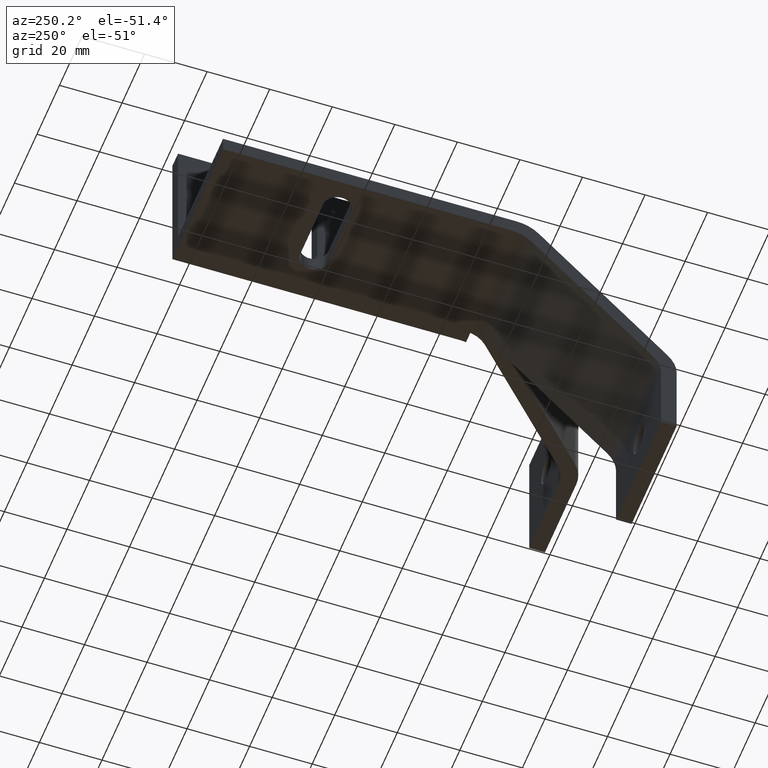
[diagram: clean part render]
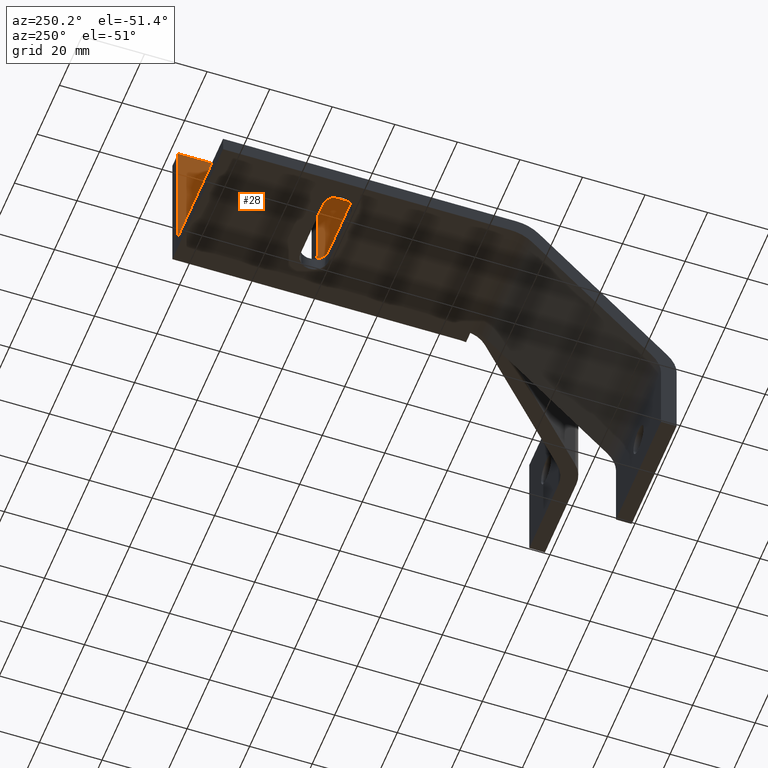
[diagram: same view with one face highlighted and labeled with its STEP entity id]
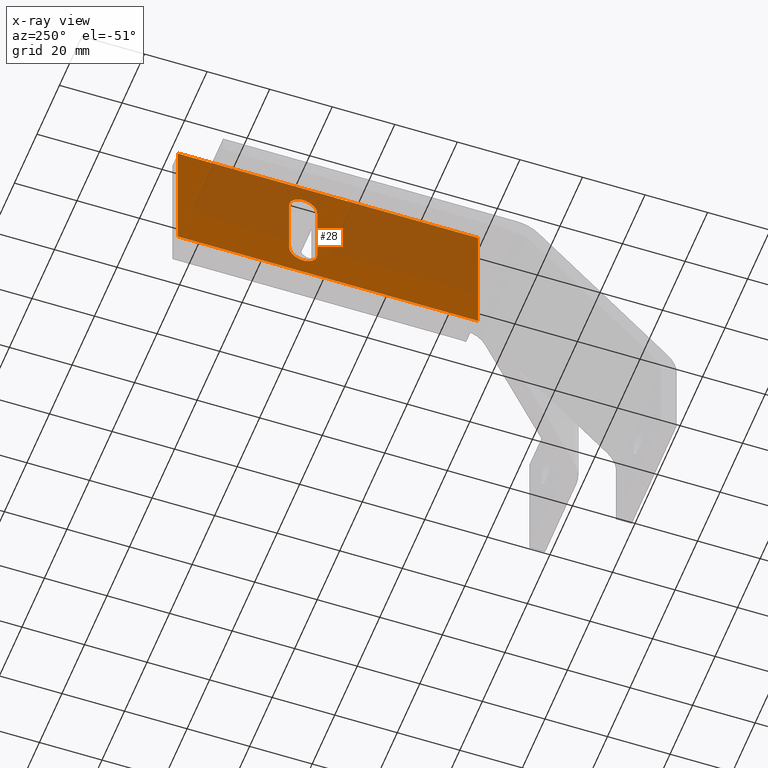
[diagram: x-ray of the same camera — body ghosted, the highlighted face saturated]
A machine part, auxiliary view. The second image highlights one B-rep face of the part: STEP entity #28.
The next image is the same camera in x-ray: the body ghosted, the highlighted face saturated — about 56% of this face is hidden behind the body in this view.
In plain terms, the highlighted planar face has unit normal (1, -0, 0).
Its self-contained STEP definition (entity closure, byte-faithful):
#28 = ADVANCED_FACE ( 'NONE', ( #658, #657 ), #1250, .F. ) ;
#60 = EDGE_CURVE ( 'NONE', #776, #788, #592, .T. ) ;
#80 = EDGE_CURVE ( 'NONE', #1098, #287, #545, .T. ) ;
#81 = EDGE_CURVE ( 'NONE', #782, #288, #542, .T. ) ;
#88 = EDGE_CURVE ( 'NONE', #778, #788, #530, .T. ) ;
#91 = EDGE_CURVE ( 'NONE', #778, #786, #523, .T. ) ;
#93 = EDGE_CURVE ( 'NONE', #288, #1098, #518, .T. ) ;
#95 = EDGE_CURVE ( 'NONE', #287, #782, #515, .T. ) ;
#108 = EDGE_CURVE ( 'NONE', #785, #776, #493, .T. ) ;
#159 = CARTESIAN_POINT ( 'NONE',  ( -76.99999999999998600, 100.5000000006853800, 30.00000000000000000 ) ) ;
#160 = CARTESIAN_POINT ( 'NONE',  ( -77.00000000000001400, 109.5000000210259700, 10.00000000000000000 ) ) ;
#166 = CARTESIAN_POINT ( 'NONE',  ( -77.00000000000000000, 51.14213562400002600, 0.0000000000000000000 ) ) ;
#168 = CARTESIAN_POINT ( 'NONE',  ( -76.99999999666667300, 145.0000000000000000, 40.00000000000000000 ) ) ;
#172 = CARTESIAN_POINT ( 'NONE',  ( -76.99999999999998600, 109.5000000210259700, 30.00000000046147600 ) ) ;
#175 = CARTESIAN_POINT ( 'NONE',  ( -77.00000000000000000, 49.07106781199998800, 0.0000000000000000000 ) ) ;
#176 = CARTESIAN_POINT ( 'NONE',  ( -77.00000000000000000, 49.07106781199999500, 40.00000000000000000 ) ) ;
#178 = CARTESIAN_POINT ( 'NONE',  ( -76.99999999666667300, 145.0000000000000000, -3.333333320013990500E-009 ) ) ;
#187 = CARTESIAN_POINT ( 'NONE',  ( -77.00000000000001400, 100.5000000006853800, 10.00000000000000000 ) ) ;
#273 = EDGE_CURVE ( 'NONE', #786, #785, #430, .T. ) ;
#287 = VERTEX_POINT ( 'NONE', #159 ) ;
#288 = VERTEX_POINT ( 'NONE', #160 ) ;
#429 = VECTOR ( 'NONE', #1083, 1000.000000000000000 ) ;
#430 = LINE ( 'NONE', #1082, #429 ) ;
#492 = VECTOR ( 'NONE', #1032, 1000.000000000000000 ) ;
#493 = LINE ( 'NONE', #1031, #492 ) ;
#515 = CIRCLE ( 'NONE', #734, 4.499999999999990200 ) ;
#518 = CIRCLE ( 'NONE', #735, 4.500000000000003600 ) ;
#522 = VECTOR ( 'NONE', #795, 1000.000000000000000 ) ;
#523 = LINE ( 'NONE', #794, #522 ) ;
#528 = VECTOR ( 'NONE', #1155, 1000.000000000000000 ) ;
#530 = LINE ( 'NONE', #1154, #528 ) ;
#532 = ORIENTED_EDGE ( 'NONE', *, *, #81, .F. ) ;
#541 = VECTOR ( 'NONE', #1139, 1000.000000000000000 ) ;
#542 = LINE ( 'NONE', #1138, #541 ) ;
#543 = VECTOR ( 'NONE', #1137, 1000.000000000000000 ) ;
#545 = LINE ( 'NONE', #1136, #543 ) ;
#546 = ORIENTED_EDGE ( 'NONE', *, *, #273, .F. ) ;
#591 = VECTOR ( 'NONE', #1162, 1000.000000000000000 ) ;
#592 = LINE ( 'NONE', #1161, #591 ) ;
#657 = FACE_OUTER_BOUND ( 'NONE', #831, .T. ) ;
#658 = FACE_BOUND ( 'NONE', #828, .T. ) ;
#693 = ORIENTED_EDGE ( 'NONE', *, *, #95, .F. ) ;
#694 = ORIENTED_EDGE ( 'NONE', *, *, #80, .F. ) ;
#696 = ORIENTED_EDGE ( 'NONE', *, *, #93, .F. ) ;
#716 = ORIENTED_EDGE ( 'NONE', *, *, #91, .F. ) ;
#717 = ORIENTED_EDGE ( 'NONE', *, *, #88, .T. ) ;
#734 = AXIS2_PLACEMENT_3D ( 'NONE', #803, #804, #805 ) ;
#735 = AXIS2_PLACEMENT_3D ( 'NONE', #798, #799, #800 ) ;
#771 = AXIS2_PLACEMENT_3D ( 'NONE', #1251, #1252, #1253 ) ;
#776 = VERTEX_POINT ( 'NONE', #166 ) ;
#778 = VERTEX_POINT ( 'NONE', #168 ) ;
#782 = VERTEX_POINT ( 'NONE', #172 ) ;
#785 = VERTEX_POINT ( 'NONE', #175 ) ;
#786 = VERTEX_POINT ( 'NONE', #176 ) ;
#788 = VERTEX_POINT ( 'NONE', #178 ) ;
#794 = CARTESIAN_POINT ( 'NONE',  ( -77.00000000000000000, 97.03553390599998400, 40.00000000000000000 ) ) ;
#795 = DIRECTION ( 'NONE',  ( -0.0000000000000000000, -1.000000000000000000, -0.0000000000000000000 ) ) ;
#798 = CARTESIAN_POINT ( 'NONE',  ( -77.00000000000000000, 105.0000000000000000, 10.00000000000000000 ) ) ;
#799 = DIRECTION ( 'NONE',  ( -1.000000000000000000, 1.541976423090498600E-015, -0.0000000000000000000 ) ) ;
#800 = DIRECTION ( 'NONE',  ( 3.083952846180988100E-015, 1.000000000000000000, 0.0000000000000000000 ) ) ;
#803 = CARTESIAN_POINT ( 'NONE',  ( -76.99999999999998600, 105.0000000000000000, 30.00000000000000000 ) ) ;
#804 = DIRECTION ( 'NONE',  ( -1.000000000000000000, 1.541976423090498600E-015, -0.0000000000000000000 ) ) ;
#805 = DIRECTION ( 'NONE',  ( 3.083952846180997200E-015, 1.000000000000000000, 0.0000000000000000000 ) ) ;
#828 = EDGE_LOOP ( 'NONE', ( #693, #694, #696, #532 ) ) ;
#831 = EDGE_LOOP ( 'NONE', ( #1019, #546, #716, #717, #1011 ) ) ;
#1011 = ORIENTED_EDGE ( 'NONE', *, *, #60, .F. ) ;
#1019 = ORIENTED_EDGE ( 'NONE', *, *, #108, .F. ) ;
#1031 = CARTESIAN_POINT ( 'NONE',  ( -77.00000000000000000, 97.03553390599998400, 0.0000000000000000000 ) ) ;
#1032 = DIRECTION ( 'NONE',  ( 0.0000000000000000000, 1.000000000000000000, 0.0000000000000000000 ) ) ;
#1082 = CARTESIAN_POINT ( 'NONE',  ( -77.00000000000000000, 49.07106781199999500, 20.00000000000000000 ) ) ;
#1083 = DIRECTION ( 'NONE',  ( 0.0000000000000000000, 0.0000000000000000000, -1.000000000000000000 ) ) ;
#1098 = VERTEX_POINT ( 'NONE', #187 ) ;
#1136 = CARTESIAN_POINT ( 'NONE',  ( -77.00000000000000000, 100.5000000013707500, 20.00000000000000000 ) ) ;
#1137 = DIRECTION ( 'NONE',  ( -0.0000000000000000000, -0.0000000000000000000, 1.000000000000000000 ) ) ;
#1138 = CARTESIAN_POINT ( 'NONE',  ( -77.00000000000000000, 109.5000000420519700, 20.00000000000000000 ) ) ;
#1139 = DIRECTION ( 'NONE',  ( 0.0000000000000000000, 0.0000000000000000000, -1.000000000000000000 ) ) ;
#1154 = CARTESIAN_POINT ( 'NONE',  ( -76.99999999500001000, 145.0000000000000000, 17.49999999999999600 ) ) ;
#1155 = DIRECTION ( 'NONE',  ( 0.0000000000000000000, 0.0000000000000000000, -1.000000000000000000 ) ) ;
#1161 = CARTESIAN_POINT ( 'NONE',  ( -77.00000000000000000, 98.07106781200001000, 0.0000000000000000000 ) ) ;
#1162 = DIRECTION ( 'NONE',  ( 0.0000000000000000000, 1.000000000000000000, 0.0000000000000000000 ) ) ;
#1250 = PLANE ( 'NONE',  #771 ) ;
#1251 = CARTESIAN_POINT ( 'NONE',  ( -77.00000000000000000, 49.07106781199999500, 40.00000000000000000 ) ) ;
#1252 = DIRECTION ( 'NONE',  ( 1.000000000000000000, -0.0000000000000000000, 0.0000000000000000000 ) ) ;
#1253 = DIRECTION ( 'NONE',  ( 0.0000000000000000000, 0.0000000000000000000, -1.000000000000000000 ) ) ;